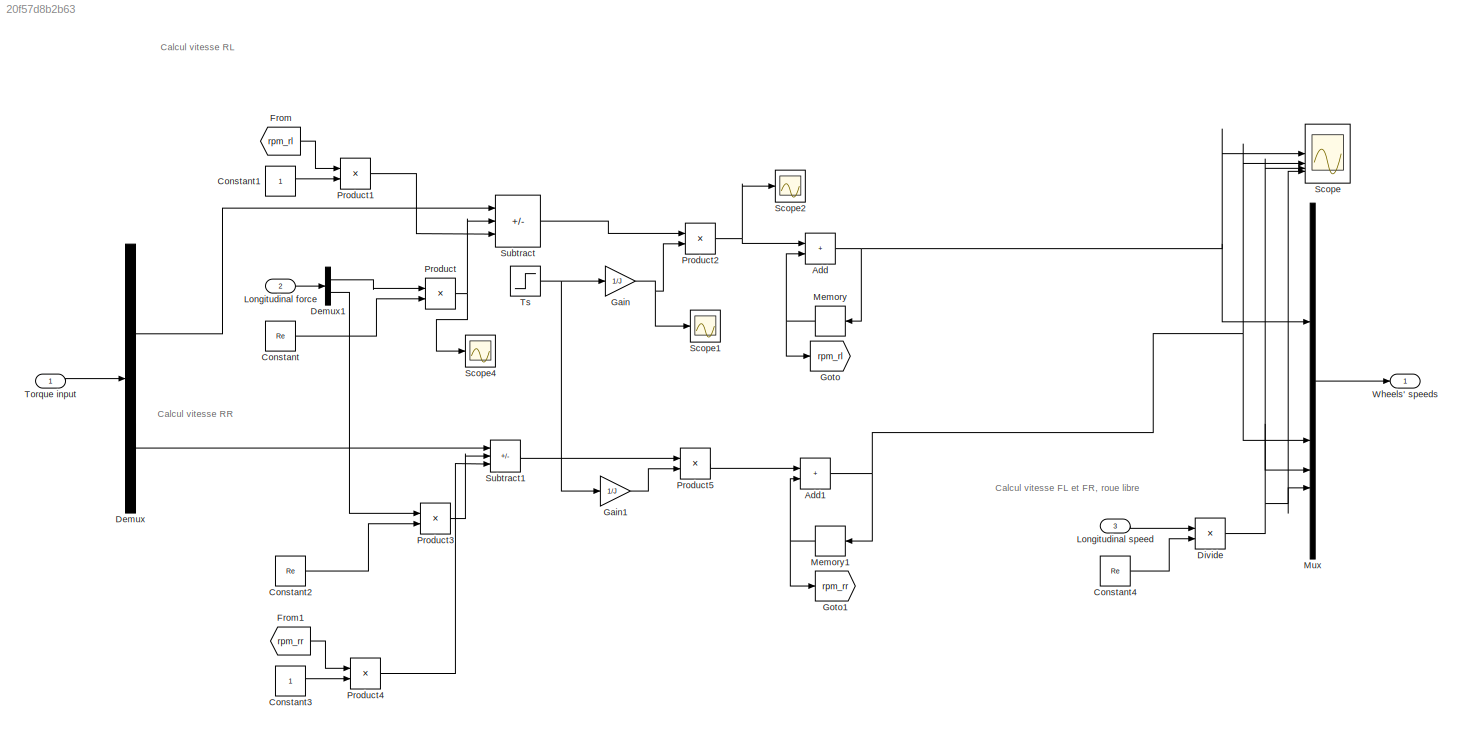
MODEL slx_20f57d8b2b63
KIND model
CONFIG AbsTol = auto
CONFIG EnableMultiTasking = off
CONFIG FixedStep = Ts
CONFIG MaxStep = auto
CONFIG MinStep = auto
CONFIG RelTol = 1e-3
CONFIG SampleTimeConstraint = Unconstrained
CONFIG SolverName = FixedStepAuto
CONFIG StartTime = 0.0
CONFIG StopTime = 10.0
BLOCK [Sum] Add
  IconShape = rectangular
BLOCK [Sum] Add1
  IconShape = rectangular
BLOCK [Constant] Constant
  Value = Re
BLOCK [Constant] Constant1
BLOCK [Constant] Constant2
  Value = Re
BLOCK [Constant] Constant3
BLOCK [Constant] Constant4
  Value = Re
BLOCK [Demux] Demux
  Outputs = 2
BLOCK [Demux] Demux1
  Outputs = 2
BLOCK [Product] Divide
  Inputs = */
BLOCK [From] From
  GotoTag = rpm_rl
BLOCK [From] From1
  GotoTag = rpm_rr
BLOCK [Gain] Gain
  Gain = 1/J
BLOCK [Gain] Gain1
  Gain = 1/J
BLOCK [Goto] Goto
  GotoTag = rpm_rl
BLOCK [Goto] Goto1
  GotoTag = rpm_rr
BLOCK [Inport] Longitudinal force
  Port = 2
BLOCK [Inport] Longitudinal speed
  Port = 3
BLOCK [Memory] Memory
  InitialCondition = v0/Re
  NameLocation = top
BLOCK [Memory] Memory1
  InitialCondition = v0/Re
  NameLocation = top
BLOCK [Mux] Mux
  DisplayOption = bar
BLOCK [Product] Product
BLOCK [Product] Product1
BLOCK [Product] Product2
BLOCK [Product] Product3
BLOCK [Product] Product4
BLOCK [Product] Product5
BLOCK [Scope] Scope
  Floating = off
  NumInputPorts = 4
  ScopeSpecificationString = Simulink.scopes.TimeScopeBlockCfg('CurrentConfiguration', extmgr.ConfigurationSet(extmgr.Configuration('Core','General UI',true),extmgr.Configuration('Core','Source UI',true),extmgr.Configuration('Sources','WiredSimulink',true),extmgr.Configuration('Visuals','Time Domain',true,'SerializedDisplays',{struct('MinYLimReal','-151.04327','MaxYLimReal','364.32926','YLabelReal','','MinYLimMag',' 0.00000',...<+1596ch>
BLOCK [Scope] Scope1
  Floating = off
  NumInputPorts = 1
  ScopeSpecificationString = Simulink.scopes.TimeScopeBlockCfg('CurrentConfiguration', extmgr.ConfigurationSet(extmgr.Configuration('Core','General UI',true),extmgr.Configuration('Core','Source UI',true),extmgr.Configuration('Sources','WiredSimulink',true,'DataLoggingVariableName','ScopeData1'),extmgr.Configuration('Visuals','Time Domain',true,'SerializedDisplays',{struct('MinYLimReal','0.001','MaxYLimReal','0.003','YLabelRea...<+1597ch>
BLOCK [Scope] Scope2
  Floating = off
  NumInputPorts = 1
  ScopeSpecificationString = Simulink.scopes.TimeScopeBlockCfg('CurrentConfiguration', extmgr.ConfigurationSet(extmgr.Configuration('Core','General UI',true),extmgr.Configuration('Core','Source UI',true),extmgr.Configuration('Sources','WiredSimulink',true,'DataLoggingVariableName','ScopeData2'),extmgr.Configuration('Visuals','Time Domain',true,'SerializedDisplays',{struct('MinYLimReal','-2.27882','MaxYLimReal','0.2532','YLabe...<+1483ch>
BLOCK [Scope] Scope4
  Floating = off
  NumInputPorts = 1
  ScopeSpecificationString = Simulink.scopes.TimeScopeBlockCfg('CurrentConfiguration', extmgr.ConfigurationSet(extmgr.Configuration('Core','General UI',true),extmgr.Configuration('Core','Source UI',true),extmgr.Configuration('Sources','WiredSimulink',true,'DataLoggingVariableName','ScopeData4'),extmgr.Configuration('Visuals','Time Domain',true,'SerializedDisplays',{struct('MinYLimReal','-14.6875','MaxYLimReal','132.1875','YLa...<+1494ch>
BLOCK [Sum] Subtract
  IconShape = rectangular
  Inputs = +--
BLOCK [Sum] Subtract1
  IconShape = rectangular
  Inputs = +--
BLOCK [Inport] Torque input
BLOCK [Step] Ts
  After = Ts
  SampleTime = 0
  Time = 0
BLOCK [Outport] Wheels' speeds
ANNOTATION (root): Calcul vitesse FL et FR, roue libre
ANNOTATION (root): Calcul vitesse RL
ANNOTATION (root): Calcul vitesse RR
NET Add1:1 -> Memory1:1, Mux:2, Scope:2
NET Add:1 -> Memory:1, Mux:1, Scope:1
LINE Constant1:1 -> Product1:2
LINE Constant2:1 -> Product3:2
LINE Constant3:1 -> Product4:2
LINE Constant4:1 -> Divide:2
LINE Constant:1 -> Product:2
LINE Demux1:1 -> Product:1
LINE Demux1:2 -> Product3:1
LINE Demux:1 -> Subtract:1
LINE Demux:2 -> Subtract1:1
NET Divide:1 -> Mux:3, Mux:4, Scope:3, Scope:4
LINE From1:1 -> Product4:1
LINE From:1 -> Product1:1
LINE Gain1:1 -> Product5:2
NET Gain:1 -> Product2:2, Scope1:1
LINE Longitudinal force:1 -> Demux1:1
LINE Longitudinal speed:1 -> Divide:1
NET Memory1:1 -> Add1:2, Goto1:1
NET Memory:1 -> Add:2, Goto:1
LINE Mux:1 -> Wheels' speeds:1
LINE Product1:1 -> Subtract:3
NET Product2:1 -> Add:1, Scope2:1
LINE Product3:1 -> Subtract1:2
LINE Product4:1 -> Subtract1:3
LINE Product5:1 -> Add1:1
NET Product:1 -> Scope4:1, Subtract:2
LINE Subtract1:1 -> Product5:1
LINE Subtract:1 -> Product2:1
LINE Torque input:1 -> Demux:1
NET Ts:1 -> Gain1:1, Gain:1
note: NET lines group one-source signal fan-out (src -> all destinations, sorted); 1:1 wires keep LINE
